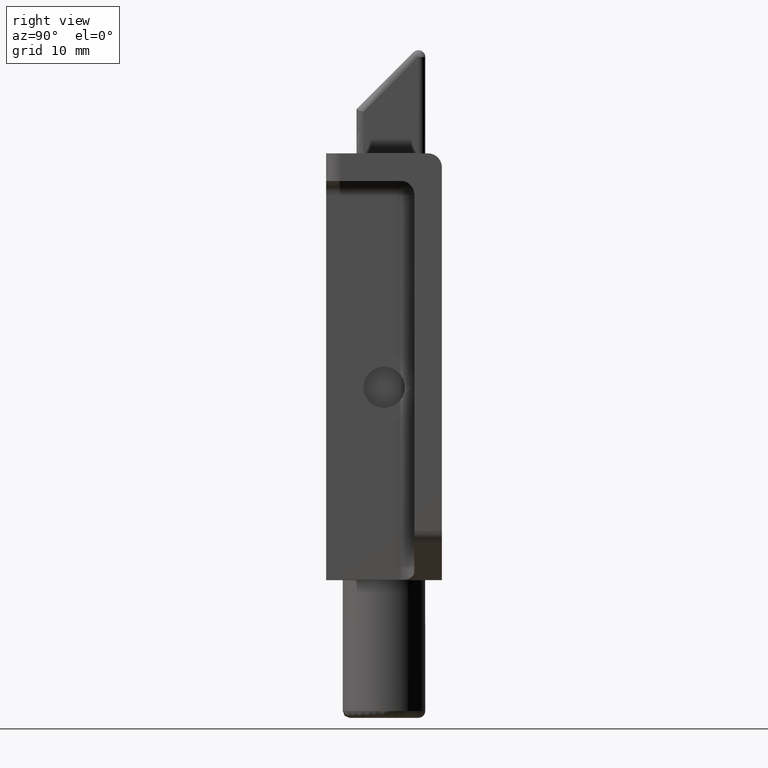
[diagram: clean part render]
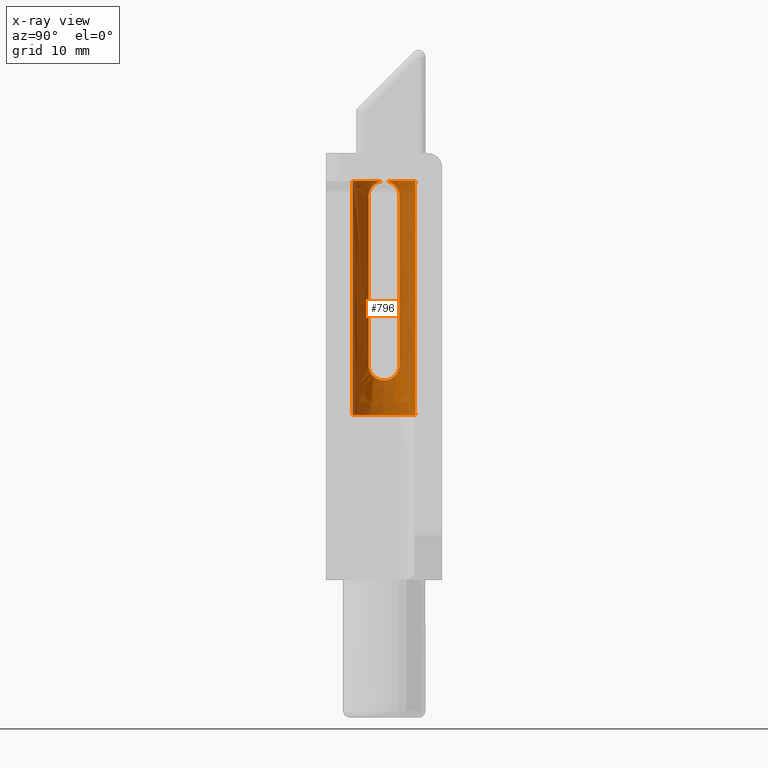
[diagram: x-ray — body ghosted, one internal face saturated and labeled with its STEP entity id]
A machine part, right view, then the same camera in x-ray: the body is ghosted and one INTERNAL B-rep face — a face not visible from any outside direction — is saturated and labeled: STEP entity #796.
In plain terms, the highlighted face is a freeform B-spline surface patch.
Its self-contained STEP definition (entity closure, byte-faithful):
#309=CARTESIAN_POINT('',(-0.564782409603259,3.885188727111317,-3.999999999999999));
#310=VERTEX_POINT('',#309);
#326=CARTESIAN_POINT('',(-0.564782409603259,3.885188727111316,-38.0));
#327=VERTEX_POINT('',#326);
#328=CARTESIAN_POINT('',(-0.564782409603259,3.885188727111317,-3.999999999999999));
#329=CARTESIAN_POINT('',(-0.564782409603259,3.885188727111316,-38.0));
#330=QUASI_UNIFORM_CURVE('',1,(#328,#329),.UNSPECIFIED.,.F.,.U.);
#331=EDGE_CURVE('',#310,#327,#330,.T.);
#348=CARTESIAN_POINT('',(0.039705736800158,12.949826749939509,-38.0));
#349=VERTEX_POINT('',#348);
#365=CARTESIAN_POINT('',(0.039705736800158,12.949826749939509,-3.999999999999999));
#366=VERTEX_POINT('',#365);
#367=CARTESIAN_POINT('',(0.039705736800158,12.949826749939509,-3.999999999999999));
#368=CARTESIAN_POINT('',(0.039705736800158,12.949826749939509,-38.0));
#369=QUASI_UNIFORM_CURVE('',1,(#367,#368),.UNSPECIFIED.,.F.,.U.);
#370=EDGE_CURVE('',#366,#349,#369,.T.);
#547=CARTESIAN_POINT('',(0.039705736517601,12.949826749941980,-3.149999999999999));
#548=CARTESIAN_POINT('',(4.589532486459580,12.910121013424376,-3.149999999999999));
#549=CARTESIAN_POINT('',(4.549826749941978,8.360294263482400,-3.149999999999999));
#550=CARTESIAN_POINT('',(4.510121013424377,3.810467513540420,-3.149999999999999));
#551=CARTESIAN_POINT('',(-0.039705736517601,3.850173250058022,-3.149999999999999));
#552=CARTESIAN_POINT('',(-0.303258223259690,3.852473237765746,-3.149999999999999));
#553=CARTESIAN_POINT('',(-0.564782409463223,3.885188727093800,-3.150000000000000));
#554=CARTESIAN_POINT('',(0.039705736517601,12.949826749941980,-38.871250000000003));
#555=CARTESIAN_POINT('',(4.589532486459580,12.910121013424376,-38.871250000000003));
#556=CARTESIAN_POINT('',(4.549826749941978,8.360294263482400,-38.871250000000003));
#557=CARTESIAN_POINT('',(4.510121013424377,3.810467513540420,-38.871250000000003));
#558=CARTESIAN_POINT('',(-0.039705736517601,3.850173250058022,-38.871250000000003));
#559=CARTESIAN_POINT('',(-0.303258223259690,3.852473237765746,-38.871250000000003));
#560=CARTESIAN_POINT('',(-0.564782409463223,3.885188727093800,-38.871250000000011));
#568=(BOUNDED_SURFACE()B_SPLINE_SURFACE(2,1,((#547,#554),(#548,#555),(#549,#556),(#550,#557),(#551,#558),(#552,#559),(#553,#560)),.UNSPECIFIED.,.F.,.F.,.U.)B_SPLINE_SURFACE_WITH_KNOTS((3,2,2,3),(2,2),(0.0,7.538686835190328,15.077373670380659,15.680468617195880),(0.0,35.721250000000012),.UNSPECIFIED.)GEOMETRIC_REPRESENTATION_ITEM()RATIONAL_B_SPLINE_SURFACE(((1.0,1.0),(0.707106781186548,0.707106781186548),(1.0,1.0),(0.707106781186548,0.707106781186548),(1.0,1.0),(0.976568542494924,0.976568542494924),(0.956886118190660,0.956886118190660)))REPRESENTATION_ITEM('')SURFACE());
#569=CARTESIAN_POINT('',(4.550000000000000,8.400000000000000,-4.0));
#570=VERTEX_POINT('',#569);
#571=CARTESIAN_POINT('',(4.550000000000000,8.400000000000000,-4.0));
#572=CARTESIAN_POINT('',(4.550000000000001,3.850000000000000,-4.000000000000000));
#573=CARTESIAN_POINT('',(0.0,3.849999999999999,-4.0));
#574=CARTESIAN_POINT('',(-0.283487420419074,3.849999999999999,-4.0));
#575=CARTESIAN_POINT('',(-0.564782409603259,3.885188727111316,-3.999999999999999));
#583=(BOUNDED_CURVE()B_SPLINE_CURVE(2,(#571,#572,#573,#574,#575),.UNSPECIFIED.,.F.,.U.)B_SPLINE_CURVE_WITH_KNOTS((3,2,3),(0.0,0.500000000000000,0.542947857962326),.UNSPECIFIED.)CURVE()GEOMETRIC_REPRESENTATION_ITEM()RATIONAL_B_SPLINE_CURVE((1.0,0.707106781186548,1.0,0.974841727280543,0.954005430254416))REPRESENTATION_ITEM(''));
#584=EDGE_CURVE('',#570,#310,#583,.T.);
#585=ORIENTED_EDGE('',*,*,#584,.F.);
#586=CARTESIAN_POINT('',(3.954743986657070,6.150000000000000,-6.250000000000000));
#587=VERTEX_POINT('',#586);
#588=CARTESIAN_POINT('',(3.954743986657070,6.150000000000000,-6.250000000000000));
#589=CARTESIAN_POINT('',(3.954743986657042,6.150000000000002,-6.098666559227361));
#590=CARTESIAN_POINT('',(3.963441625732474,6.165105536706995,-5.950465243714542));
#591=CARTESIAN_POINT('',(3.987805806356768,6.209067425398746,-5.732498273798731));
#592=CARTESIAN_POINT('',(3.997811350399687,6.227301122381285,-5.660569518817518));
#593=CARTESIAN_POINT('',(4.015409944750599,6.260108185644149,-5.553759955840626));
#594=CARTESIAN_POINT('',(4.021705032483427,6.271951262788821,-5.518372677815520));
#595=CARTESIAN_POINT('',(4.034946906110685,6.297167086733608,-5.448773624125793));
#596=CARTESIAN_POINT('',(4.041910376528600,6.310570779963088,-5.414456678759913));
#597=CARTESIAN_POINT('',(4.078252384830810,6.381480541446257,-5.245195088165149));
#598=CARTESIAN_POINT('',(4.112178288790919,6.450525013138853,-5.117145423213585));
#599=CARTESIAN_POINT('',(4.157975487200762,6.552234447897234,-4.965634601059217));
#600=CARTESIAN_POINT('',(4.167326051737940,6.573403244930650,-4.935704458845271));
#601=CARTESIAN_POINT('',(4.186135358520825,6.616931608920927,-4.877230686581406));
#602=CARTESIAN_POINT('',(4.195607900383562,6.639320017979569,-4.848637257072809));
#603=CARTESIAN_POINT('',(4.224128088629101,6.708337946796604,-4.764730447642856));
#604=CARTESIAN_POINT('',(4.243277229753264,6.756815000272059,-4.711285034096858));
#605=CARTESIAN_POINT('',(4.281345861413559,6.858722540607814,-4.609218331771475));
#606=CARTESIAN_POINT('',(4.300266482083242,6.912152813668496,-4.560597245764583));
#607=CARTESIAN_POINT('',(4.337400380113863,7.024158799355361,-4.468194200676881));
#608=CARTESIAN_POINT('',(4.355708249169182,7.083077763514624,-4.424197203609332));
#609=CARTESIAN_POINT('',(4.407955567505545,7.264948534110827,-4.301791006382339));
#610=CARTESIAN_POINT('',(4.439291730359846,7.392959783042508,-4.232615568598285));
#611=CARTESIAN_POINT('',(4.478853972864055,7.595573274802079,-4.147438436229441));
#612=CARTESIAN_POINT('',(4.490801012429106,7.664889165527818,-4.122168462400468));
#613=CARTESIAN_POINT('',(4.506555917707193,7.771709319958801,-4.089180810615115));
#614=CARTESIAN_POINT('',(4.511456652238384,7.807892687729986,-4.078984903694936));
#615=CARTESIAN_POINT('',(4.520375003928002,7.880344327335382,-4.060512480169026));
#616=CARTESIAN_POINT('',(4.524406725930723,7.916691953828519,-4.052206134153773));
#617=CARTESIAN_POINT('',(4.542400840266855,8.099033502523875,-4.015257984615832));
#618=CARTESIAN_POINT('',(4.549886125666753,8.246822194986118,-4.000230279407150));
#619=CARTESIAN_POINT('',(4.549999571293022,8.397719403407198,-4.000000866940397));
#620=CARTESIAN_POINT('',(4.550000000093858,8.398859644163970,-3.999999999390488));
#621=CARTESIAN_POINT('',(4.550000000000000,8.400000000000000,-4.0));
#622=B_SPLINE_CURVE_WITH_KNOTS('',3,(#588,#589,#590,#591,#592,#593,#594,#595,#596,#597,#598,#599,#600,#601,#602,#603,#604,#605,#606,#607,#608,#609,#610,#611,#612,#613,#614,#615,#616,#617,#618,#619,#620,#621),.UNSPECIFIED.,.F.,.U.,(4,2,2,2,2,2,2,2,2,2,2,2,2,2,2,2,4),(0.0,0.062499999999998,0.093749999999997,0.109374999999997,0.124999999999996,0.187499999999996,0.203124999999996,0.218749999999996,0.249999999999995,0.281249999999995,0.312499999999995,0.374999999999994,0.406249999999994,0.421874999999993,0.437499999999993,0.499999999999991,0.500475822970510),.UNSPECIFIED.);
#623=EDGE_CURVE('',#587,#570,#622,.T.);
#624=ORIENTED_EDGE('',*,*,#623,.F.);
#625=CARTESIAN_POINT('',(3.954743986657040,6.150000000000000,-30.750000000000000));
#626=VERTEX_POINT('',#625);
#627=CARTESIAN_POINT('',(3.954743986657040,6.150000000000000,-30.750000000000000));
#628=CARTESIAN_POINT('',(3.954743986657070,6.150000000000000,-6.250000000000000));
#629=QUASI_UNIFORM_CURVE('',1,(#627,#628),.UNSPECIFIED.,.F.,.U.);
#630=EDGE_CURVE('',#626,#587,#629,.T.);
#631=ORIENTED_EDGE('',*,*,#630,.F.);
#632=CARTESIAN_POINT('',(3.954743986657070,10.650000000000000,-30.750000000000000));
#633=VERTEX_POINT('',#632);
#634=CARTESIAN_POINT('',(3.954743986657040,10.650000000000000,-30.750000000000000));
#635=CARTESIAN_POINT('',(3.954743986657039,10.650000000000000,-30.901333440772639));
#636=CARTESIAN_POINT('',(3.963441625732473,10.634894463293000,-31.049534756285460));
#637=CARTESIAN_POINT('',(3.987805806356772,10.590932574601251,-31.267501726201271));
#638=CARTESIAN_POINT('',(3.997811350399689,10.572698877618720,-31.339430481182490));
#639=CARTESIAN_POINT('',(4.015409944750602,10.539891814355849,-31.446240044159389));
#640=CARTESIAN_POINT('',(4.021705032483424,10.528048737211179,-31.481627322184469));
#641=CARTESIAN_POINT('',(4.034946906110684,10.502832913266399,-31.551226375874212));
#642=CARTESIAN_POINT('',(4.041910376528604,10.489429220036920,-31.585543321240099));
#643=CARTESIAN_POINT('',(4.078252384830808,10.418519458553741,-31.754804911834849));
#644=CARTESIAN_POINT('',(4.112178288790918,10.349474986861139,-31.882854576786411));
#645=CARTESIAN_POINT('',(4.157975487200763,10.247765552102759,-32.034365398940793));
#646=CARTESIAN_POINT('',(4.167326051737938,10.226596755069350,-32.064295541154721));
#647=CARTESIAN_POINT('',(4.186135358520825,10.183068391079070,-32.122769313418587));
#648=CARTESIAN_POINT('',(4.195607900383561,10.160679982020429,-32.151362742927184));
#649=CARTESIAN_POINT('',(4.224128088629101,10.091662053203400,-32.235269552357138));
#650=CARTESIAN_POINT('',(4.243277229753264,10.043184999727940,-32.288714965903146));
#651=CARTESIAN_POINT('',(4.281345861413557,9.941277459392186,-32.390781668228520));
#652=CARTESIAN_POINT('',(4.300266482083244,9.887847186331497,-32.439402754235417));
#653=CARTESIAN_POINT('',(4.337400380113863,9.775841200644633,-32.531805799323124));
#654=CARTESIAN_POINT('',(4.355708249169181,9.716922236485372,-32.575802796390661));
#655=CARTESIAN_POINT('',(4.407955567505548,9.535051465889172,-32.698208993617662));
#656=CARTESIAN_POINT('',(4.439291730359845,9.407040216957492,-32.767384431401723));
#657=CARTESIAN_POINT('',(4.478853972864055,9.204426725197923,-32.852561563770571));
#658=CARTESIAN_POINT('',(4.490801012429105,9.135110834472181,-32.877831537599533));
#659=CARTESIAN_POINT('',(4.506555917707193,9.028290680041197,-32.910819189384867));
#660=CARTESIAN_POINT('',(4.511456652238384,8.992107312270012,-32.921015096305069));
#661=CARTESIAN_POINT('',(4.520375003928002,8.919655672664616,-32.939487519830983));
#662=CARTESIAN_POINT('',(4.524406725930724,8.883308046171472,-32.947793865846243));
#663=CARTESIAN_POINT('',(4.542400840266855,8.700966497476118,-32.984742015384178));
#664=CARTESIAN_POINT('',(4.549886125666752,8.553177805013874,-32.999769720592838));
#665=CARTESIAN_POINT('',(4.550026861255973,8.365981451686103,-33.000054319477321));
#666=CARTESIAN_POINT('',(4.549593103940590,8.328418176016596,-32.999177616385957));
#667=CARTESIAN_POINT('',(4.547782260552009,8.253037829503629,-32.995512419920964));
#668=CARTESIAN_POINT('',(4.546403992902767,8.215309814388425,-32.992721486897253));
#669=CARTESIAN_POINT('',(4.540926273602781,8.103204610754062,-32.981603241333367));
#670=CARTESIAN_POINT('',(4.530026411137991,7.955687323912204,-32.959436127655472));
#671=CARTESIAN_POINT('',(4.512406999176139,7.811931245856618,-32.923058084455597));
#672=CARTESIAN_POINT('',(4.496828173963261,7.705506068922386,-32.890456669545273));
#673=CARTESIAN_POINT('',(4.491241003992188,7.670263372663362,-32.878701531916860));
#674=CARTESIAN_POINT('',(4.479302625799315,7.600244232452941,-32.853396412837363));
#675=CARTESIAN_POINT('',(4.472946848772859,7.565459299616921,-32.839835848070642));
#676=CARTESIAN_POINT('',(4.439716911841936,7.394614092306193,-32.768329015853581));
#677=CARTESIAN_POINT('',(4.408247066912668,7.266112584444600,-32.698857610493029));
#678=CARTESIAN_POINT('',(4.364854454423829,7.114879082993487,-32.597239059987402));
#679=CARTESIAN_POINT('',(4.355972495092605,7.085106797217455,-32.576168314192763));
#680=CARTESIAN_POINT('',(4.337852324242702,7.026508927663088,-32.532514269422883));
#681=CARTESIAN_POINT('',(4.328592897700305,6.997622079710238,-32.509877188302063));
#682=CARTESIAN_POINT('',(4.300607755196005,6.913126045255023,-32.440275728864421));
#683=CARTESIAN_POINT('',(4.281628391547347,6.859504328431644,-32.391519858949529));
#684=CARTESIAN_POINT('',(4.224453849534059,6.706375465796052,-32.238285383563472));
#685=CARTESIAN_POINT('',(4.185995592017178,6.614517942944664,-32.126928292747159));
#686=CARTESIAN_POINT('',(4.140102395904219,6.512527488688476,-31.975268797145429));
#687=CARTESIAN_POINT('',(4.131033197093929,6.492777066779000,-31.944293006535499));
#688=CARTESIAN_POINT('',(4.113383358060702,6.455003356782985,-31.881734580340410));
#689=CARTESIAN_POINT('',(4.104777263877208,6.436922762576457,-31.850069939563920));
#690=CARTESIAN_POINT('',(4.079707646709338,6.385065752458363,-31.753914551231510));
#691=CARTESIAN_POINT('',(4.048276549398943,6.322269553520711,-31.622615847983099));
#692=CARTESIAN_POINT('',(4.021851406825252,6.272131787686583,-31.484933874564089));
#693=CARTESIAN_POINT('',(4.004321474343362,6.239430052740332,-31.379126565356518));
#694=CARTESIAN_POINT('',(3.998860018183113,6.229348177287120,-31.343432334667611));
#695=CARTESIAN_POINT('',(3.988774809851532,6.210870881659997,-31.271157341415940));
#696=CARTESIAN_POINT('',(3.984141181920600,6.202457762649317,-31.234474777051410));
#697=CARTESIAN_POINT('',(3.963460688039640,6.165129790574836,-31.050629771731529));
#698=CARTESIAN_POINT('',(3.954743986657040,6.150000000000001,-30.901427691452639));
#699=CARTESIAN_POINT('',(3.954743986657040,6.150000000000000,-30.750000000000000));
#700=B_SPLINE_CURVE_WITH_KNOTS('',3,(#634,#635,#636,#637,#638,#639,#640,#641,#642,#643,#644,#645,#646,#647,#648,#649,#650,#651,#652,#653,#654,#655,#656,#657,#658,#659,#660,#661,#662,#663,#664,#665,#666,#667,#668,#669,#670,#671,#672,#673,#674,#675,#676,#677,#678,#679,#680,#681,#682,#683,#684,#685,#686,#687,#688,#689,#690,#691,#692,#693,#694,#695,#696,#697,#698,#699),.UNSPECIFIED.,.F.,.U.,(4,2,2,2,2,2,2,2,2,2,2,2,2,2,2,2,2,2,1,2,2,2,2,2,2,2,2,2,2,1,2,2,2,4),(0.0,0.062500000000006,0.093750000000008,0.109375000000010,0.125000000000013,0.187500000000019,0.203125000000021,0.218750000000023,0.250000000000023,0.281250000000024,0.312500000000025,0.375000000000024,0.406250000000025,0.421875000000025,0.437500000000025,0.500000000000027,0.515625000000027,0.531250000000027,0.562500000000028,0.593750000000028,0.609375000000028,0.625000000000029,0.687500000000028,0.703125000000027,0.718750000000026,0.750000000000022,0.812500000000014,0.828125000000012,0.843750000000011,0.875000000000010,0.906250000000009,0.921875000000008,0.937500000000006,1.0),.UNSPECIFIED.);
#701=EDGE_CURVE('',#633,#626,#700,.T.);
#702=ORIENTED_EDGE('',*,*,#701,.F.);
#703=CARTESIAN_POINT('',(3.954743986657040,10.650000000000000,-6.250000000000000));
#704=VERTEX_POINT('',#703);
#705=CARTESIAN_POINT('',(3.954743986657040,10.650000000000000,-6.250000000000000));
#706=CARTESIAN_POINT('',(3.954743986657070,10.650000000000000,-30.750000000000000));
#707=QUASI_UNIFORM_CURVE('',1,(#705,#706),.UNSPECIFIED.,.F.,.U.);
#708=EDGE_CURVE('',#704,#633,#707,.T.);
#709=ORIENTED_EDGE('',*,*,#708,.F.);
#710=CARTESIAN_POINT('',(4.550000000000000,8.400000000000000,-4.0));
#711=CARTESIAN_POINT('',(4.550000005714010,8.436306470078959,-3.999999962886560));
#712=CARTESIAN_POINT('',(4.549565531432419,8.472729590396090,-4.000878191123472));
#713=CARTESIAN_POINT('',(4.547782260552010,8.546962170496368,-4.004487580079020));
#714=CARTESIAN_POINT('',(4.546403992902766,8.584690185611571,-4.007278513102752));
#715=CARTESIAN_POINT('',(4.540926273602780,8.696795389245935,-4.018396758666623));
#716=CARTESIAN_POINT('',(4.530026411137993,8.844312676087787,-4.040563872344531));
#717=CARTESIAN_POINT('',(4.512406999176140,8.988068754143376,-4.076941915544390));
#718=CARTESIAN_POINT('',(4.496828173963261,9.094493931077611,-4.109543330454742));
#719=CARTESIAN_POINT('',(4.491241003992189,9.129736627336637,-4.121298468083134));
#720=CARTESIAN_POINT('',(4.479302625799318,9.199755767547057,-4.146603587162640));
#721=CARTESIAN_POINT('',(4.472946848772857,9.234540700383072,-4.160164151929375));
#722=CARTESIAN_POINT('',(4.439716911841938,9.405385907693800,-4.231670984146413));
#723=CARTESIAN_POINT('',(4.408247066912670,9.533887415555389,-4.301142389506958));
#724=CARTESIAN_POINT('',(4.364854454423829,9.685120917006511,-4.402760940012619));
#725=CARTESIAN_POINT('',(4.355972495092605,9.714893202782548,-4.423831685807239));
#726=CARTESIAN_POINT('',(4.337852324242703,9.773491072336913,-4.467485730577121));
#727=CARTESIAN_POINT('',(4.328592897700309,9.802377920289755,-4.490122811697930));
#728=CARTESIAN_POINT('',(4.300607755196005,9.886873954744974,-4.559724271135593));
#729=CARTESIAN_POINT('',(4.281628391547348,9.940495671568353,-4.608480141050465));
#730=CARTESIAN_POINT('',(4.224453849534059,10.093624534203951,-4.761714616436536));
#731=CARTESIAN_POINT('',(4.185995592017177,10.185482057055340,-4.873071707252840));
#732=CARTESIAN_POINT('',(4.140102395904219,10.287472511311529,-5.024731202854576));
#733=CARTESIAN_POINT('',(4.131033197093930,10.307222933221000,-5.055706993464495));
#734=CARTESIAN_POINT('',(4.113383358060704,10.344996643217010,-5.118265419659597));
#735=CARTESIAN_POINT('',(4.104777263877208,10.363077237423539,-5.149930060436065));
#736=CARTESIAN_POINT('',(4.079707646709339,10.414934247541630,-5.246085448768483));
#737=CARTESIAN_POINT('',(4.048276549398945,10.477730446479301,-5.377384152016899));
#738=CARTESIAN_POINT('',(4.021851406825249,10.527868212313420,-5.515066125435929));
#739=CARTESIAN_POINT('',(4.004321474343362,10.560569947259671,-5.620873434643492));
#740=CARTESIAN_POINT('',(3.998860018183114,10.570651822712881,-5.656567665332385));
#741=CARTESIAN_POINT('',(3.988774809851533,10.589129118340001,-5.728842658584058));
#742=CARTESIAN_POINT('',(3.984141181920602,10.597542237350680,-5.765525222948576));
#743=CARTESIAN_POINT('',(3.963460688039641,10.634870209425159,-5.949370228268474));
#744=CARTESIAN_POINT('',(3.954743986657041,10.650000000000000,-6.098572308547360));
#745=CARTESIAN_POINT('',(3.954743986657040,10.650000000000000,-6.249999999999998));
#746=B_SPLINE_CURVE_WITH_KNOTS('',3,(#710,#711,#712,#713,#714,#715,#716,#717,#718,#719,#720,#721,#722,#723,#724,#725,#726,#727,#728,#729,#730,#731,#732,#733,#734,#735,#736,#737,#738,#739,#740,#741,#742,#743,#744,#745),.UNSPECIFIED.,.F.,.U.,(4,2,2,1,2,2,2,2,2,2,2,2,2,2,1,2,2,2,4),(0.500475822970510,0.515624999999990,0.531249999999990,0.562499999999990,0.593749999999990,0.609374999999990,0.624999999999990,0.687499999999989,0.703124999999990,0.718749999999990,0.749999999999991,0.812499999999993,0.828124999999994,0.843749999999994,0.874999999999996,0.906249999999997,0.921874999999998,0.937499999999998,1.0),.UNSPECIFIED.);
#747=EDGE_CURVE('',#570,#704,#746,.T.);
#748=ORIENTED_EDGE('',*,*,#747,.F.);
#749=CARTESIAN_POINT('',(0.039705736800158,12.949826749939517,-3.999999999999999));
#750=CARTESIAN_POINT('',(4.550000000000002,12.910466007646905,-4.0));
#751=CARTESIAN_POINT('',(4.550000000000000,8.400000000000000,-4.0));
#759=(BOUNDED_CURVE()B_SPLINE_CURVE(2,(#749,#750,#751),.UNSPECIFIED.,.F.,.U.)B_SPLINE_CURVE_WITH_KNOTS((3,3),(0.503079788713730,1.0),.UNSPECIFIED.)CURVE()GEOMETRIC_REPRESENTATION_ITEM()RATIONAL_B_SPLINE_CURVE((0.996414028049774,0.708910879645807,1.0))REPRESENTATION_ITEM(''));
#760=EDGE_CURVE('',#366,#570,#759,.T.);
#761=ORIENTED_EDGE('',*,*,#760,.F.);
#762=ORIENTED_EDGE('',*,*,#370,.T.);
#763=CARTESIAN_POINT('',(4.550000000000000,8.400000000000000,-38.0));
#764=VERTEX_POINT('',#763);
#765=CARTESIAN_POINT('',(0.039705736800158,12.949826749939515,-37.999999999999993));
#766=CARTESIAN_POINT('',(4.550000000000002,12.910466007646905,-37.999999999999993));
#767=CARTESIAN_POINT('',(4.550000000000000,8.400000000000000,-38.0));
#775=(BOUNDED_CURVE()B_SPLINE_CURVE(2,(#765,#766,#767),.UNSPECIFIED.,.F.,.U.)B_SPLINE_CURVE_WITH_KNOTS((3,3),(0.751539894356865,1.0),.UNSPECIFIED.)CURVE()GEOMETRIC_REPRESENTATION_ITEM()RATIONAL_B_SPLINE_CURVE((0.996414028049774,0.708910879645807,1.0))REPRESENTATION_ITEM(''));
#776=EDGE_CURVE('',#349,#764,#775,.T.);
#777=ORIENTED_EDGE('',*,*,#776,.T.);
#778=CARTESIAN_POINT('',(4.550000000000000,8.400000000000000,-38.0));
#779=CARTESIAN_POINT('',(4.550000000000001,3.850000000000000,-38.0));
#780=CARTESIAN_POINT('',(0.0,3.849999999999999,-38.0));
#781=CARTESIAN_POINT('',(-0.283487420419074,3.849999999999999,-38.0));
#782=CARTESIAN_POINT('',(-0.564782409603259,3.885188727111316,-38.0));
#790=(BOUNDED_CURVE()B_SPLINE_CURVE(2,(#778,#779,#780,#781,#782),.UNSPECIFIED.,.F.,.U.)B_SPLINE_CURVE_WITH_KNOTS((3,2,3),(0.0,0.250000000000000,0.271473928981163),.UNSPECIFIED.)CURVE()GEOMETRIC_REPRESENTATION_ITEM()RATIONAL_B_SPLINE_CURVE((1.0,0.707106781186548,1.0,0.974841727280543,0.954005430254416))REPRESENTATION_ITEM(''));
#791=EDGE_CURVE('',#764,#327,#790,.T.);
#792=ORIENTED_EDGE('',*,*,#791,.T.);
#793=ORIENTED_EDGE('',*,*,#331,.F.);
#794=EDGE_LOOP('',(#585,#624,#631,#702,#709,#748,#761,#762,#777,#792,#793));
#795=FACE_OUTER_BOUND('',#794,.T.);
#796=ADVANCED_FACE('',(#795),#568,.F.);